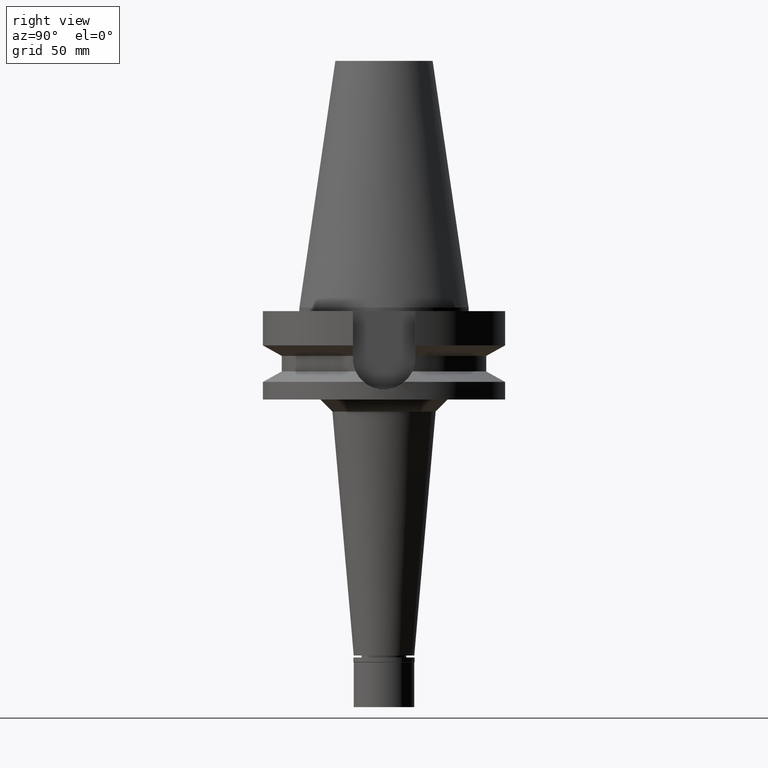
[diagram: clean part render]
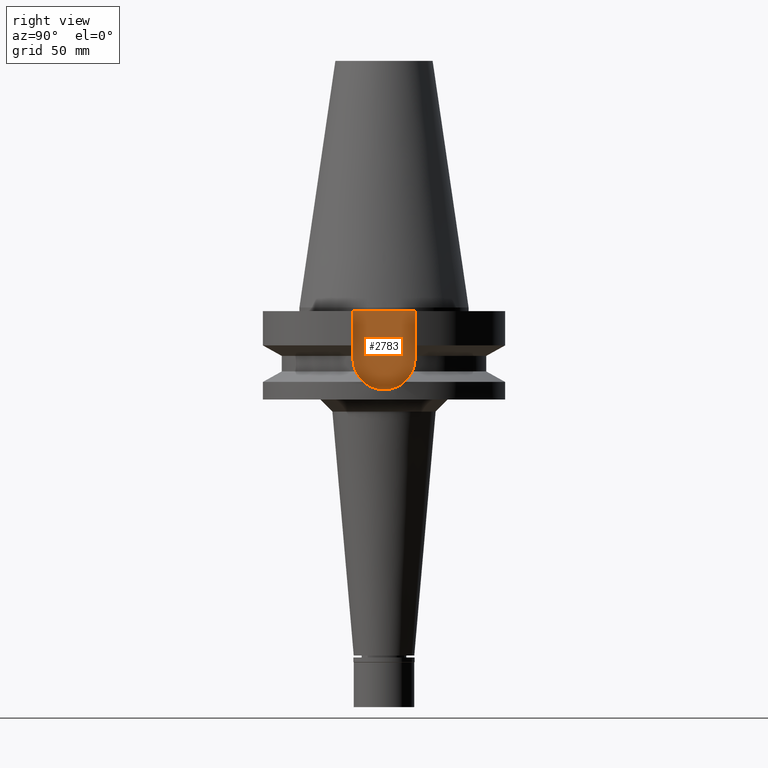
[diagram: same view with one face highlighted and labeled with its STEP entity id]
A machine part, right view. The second image highlights one B-rep face of the part: STEP entity #2783.
In plain terms, the highlighted planar face has unit normal (1, 0, 0).
Its self-contained STEP definition (entity closure, byte-faithful):
#12 = CIRCLE ( 'NONE', #261, 12.84999999999999964 ) ;
#18 = LINE ( 'NONE', #1221, #2032 ) ;
#39 = VERTEX_POINT ( 'NONE', #1518 ) ;
#261 = AXIS2_PLACEMENT_3D ( 'NONE', #1230, #746, #1992 ) ;
#422 = ORIENTED_EDGE ( 'NONE', *, *, #1271, .T. ) ;
#433 = CARTESIAN_POINT ( 'NONE',  ( 35.39999999999999858, 0.0000000000000000000, 0.0000000000000000000 ) ) ;
#458 = EDGE_CURVE ( 'NONE', #39, #2919, #12, .T. ) ;
#498 = ORIENTED_EDGE ( 'NONE', *, *, #1203, .F. ) ;
#691 = EDGE_LOOP ( 'NONE', ( #1960, #1090, #498, #422 ) ) ;
#746 = DIRECTION ( 'NONE',  ( -1.000000000000000000, 0.0000000000000000000, 0.0000000000000000000 ) ) ;
#752 = EDGE_CURVE ( 'NONE', #2919, #835, #3034, .T. ) ;
#776 = CARTESIAN_POINT ( 'NONE',  ( 35.39999999999999858, 12.84999999999999964, -1.500000000000000000 ) ) ;
#793 = VECTOR ( 'NONE', #1822, 1000.000000000000000 ) ;
#835 = VERTEX_POINT ( 'NONE', #1075 ) ;
#843 = CARTESIAN_POINT ( 'NONE',  ( 35.39999999999999858, -12.84999999999999964, -21.14999999999999858 ) ) ;
#1004 = VECTOR ( 'NONE', #2706, 1000.000000000000000 ) ;
#1075 = CARTESIAN_POINT ( 'NONE',  ( 35.39999999999999858, -12.84999999999999964, -1.500000000000000000 ) ) ;
#1090 = ORIENTED_EDGE ( 'NONE', *, *, #458, .F. ) ;
#1203 = EDGE_CURVE ( 'NONE', #2605, #39, #2242, .T. ) ;
#1221 = CARTESIAN_POINT ( 'NONE',  ( 35.39999999999999858, 12.84999999999999964, -1.500000000000000000 ) ) ;
#1230 = CARTESIAN_POINT ( 'NONE',  ( 35.39999999999999858, 0.0000000000000000000, -21.14999999999999858 ) ) ;
#1271 = EDGE_CURVE ( 'NONE', #2605, #835, #18, .T. ) ;
#1518 = CARTESIAN_POINT ( 'NONE',  ( 35.39999999999999858, 12.84999999999999964, -21.14999999999999858 ) ) ;
#1822 = DIRECTION ( 'NONE',  ( 0.0000000000000000000, 0.0000000000000000000, 1.000000000000000000 ) ) ;
#1960 = ORIENTED_EDGE ( 'NONE', *, *, #752, .F. ) ;
#1992 = DIRECTION ( 'NONE',  ( 0.0000000000000000000, 1.000000000000000000, 0.0000000000000000000 ) ) ;
#2032 = VECTOR ( 'NONE', #2984, 1000.000000000000000 ) ;
#2115 = AXIS2_PLACEMENT_3D ( 'NONE', #433, #2909, #2415 ) ;
#2242 = LINE ( 'NONE', #2720, #1004 ) ;
#2415 = DIRECTION ( 'NONE',  ( 0.0000000000000000000, 1.000000000000000000, 0.0000000000000000000 ) ) ;
#2430 = CARTESIAN_POINT ( 'NONE',  ( 35.39999999999999858, -12.84999999999999964, -21.14999999999999858 ) ) ;
#2605 = VERTEX_POINT ( 'NONE', #776 ) ;
#2638 = FACE_OUTER_BOUND ( 'NONE', #691, .T. ) ;
#2706 = DIRECTION ( 'NONE',  ( 0.0000000000000000000, 0.0000000000000000000, -1.000000000000000000 ) ) ;
#2720 = CARTESIAN_POINT ( 'NONE',  ( 35.39999999999999858, 12.84999999999999964, -1.500000000000000000 ) ) ;
#2783 = ADVANCED_FACE ( 'NONE', ( #2638 ), #2943, .T. ) ;
#2909 = DIRECTION ( 'NONE',  ( 1.000000000000000000, 0.0000000000000000000, 0.0000000000000000000 ) ) ;
#2919 = VERTEX_POINT ( 'NONE', #2430 ) ;
#2943 = PLANE ( 'NONE',  #2115 ) ;
#2984 = DIRECTION ( 'NONE',  ( 0.0000000000000000000, -1.000000000000000000, 0.0000000000000000000 ) ) ;
#3034 = LINE ( 'NONE', #843, #793 ) ;